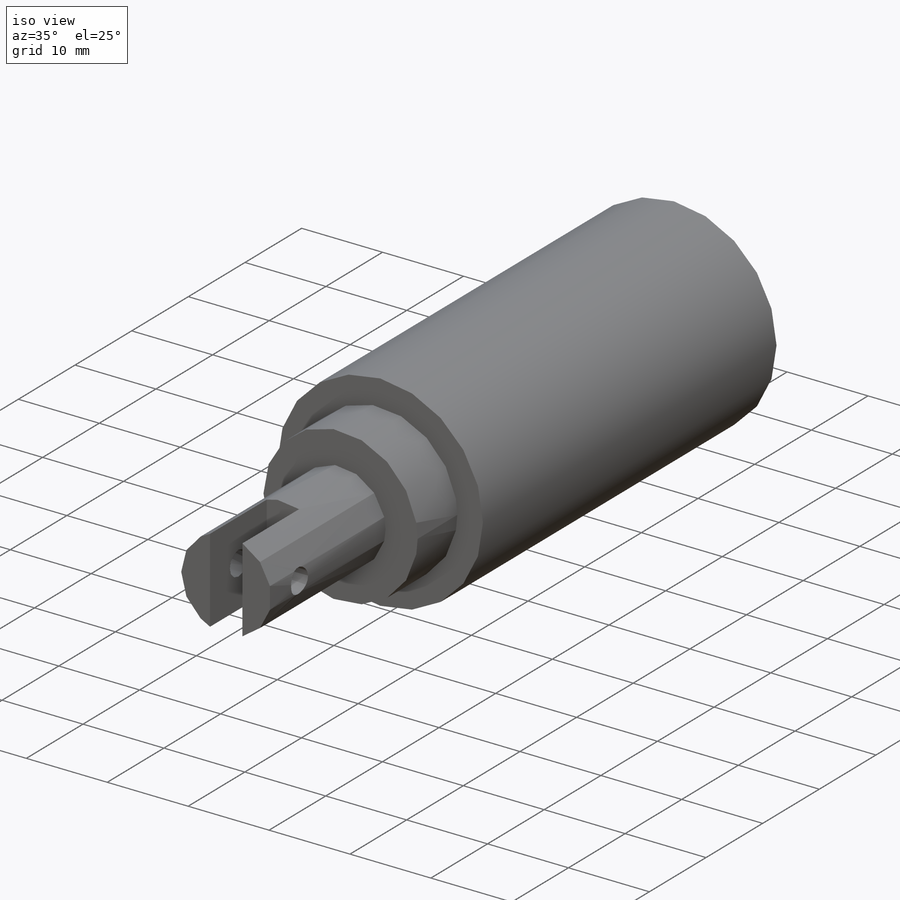
[diagram: iso view]
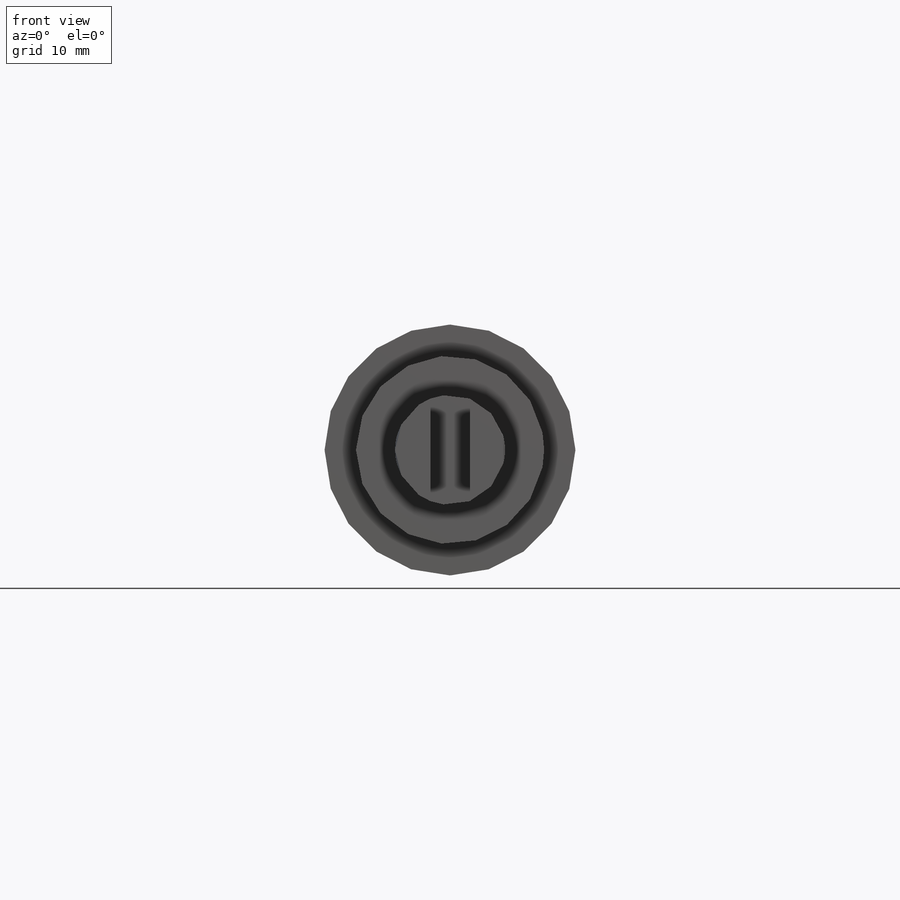
[diagram: front view]
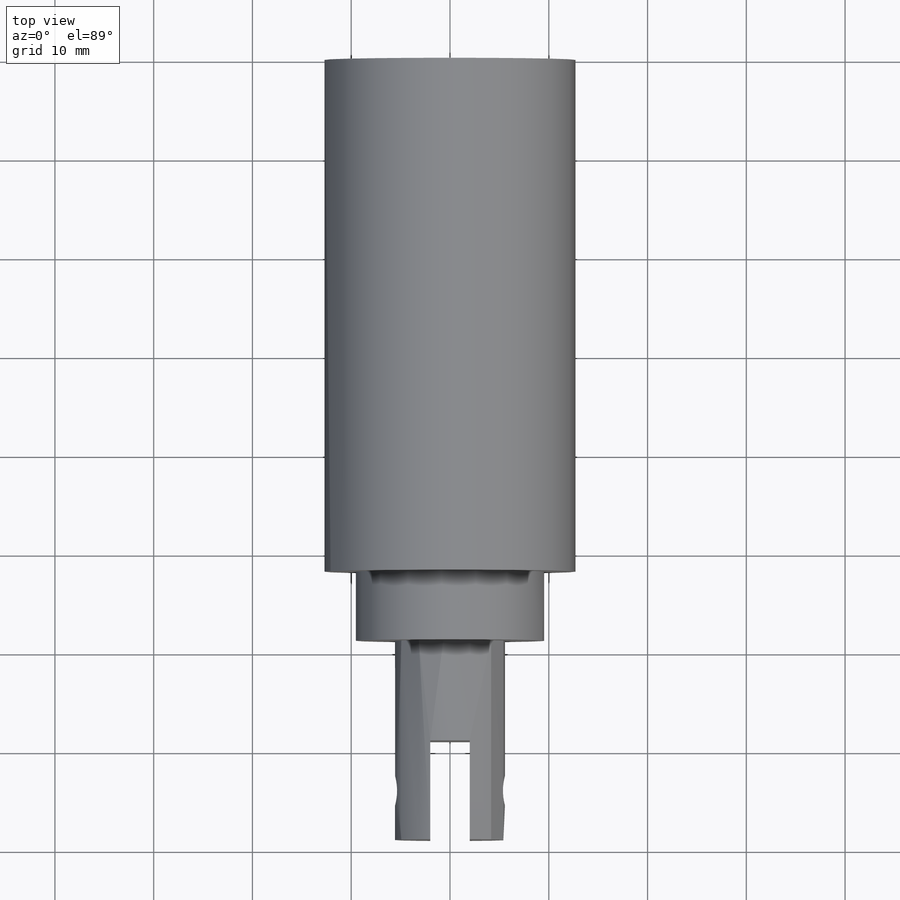
[diagram: top view]
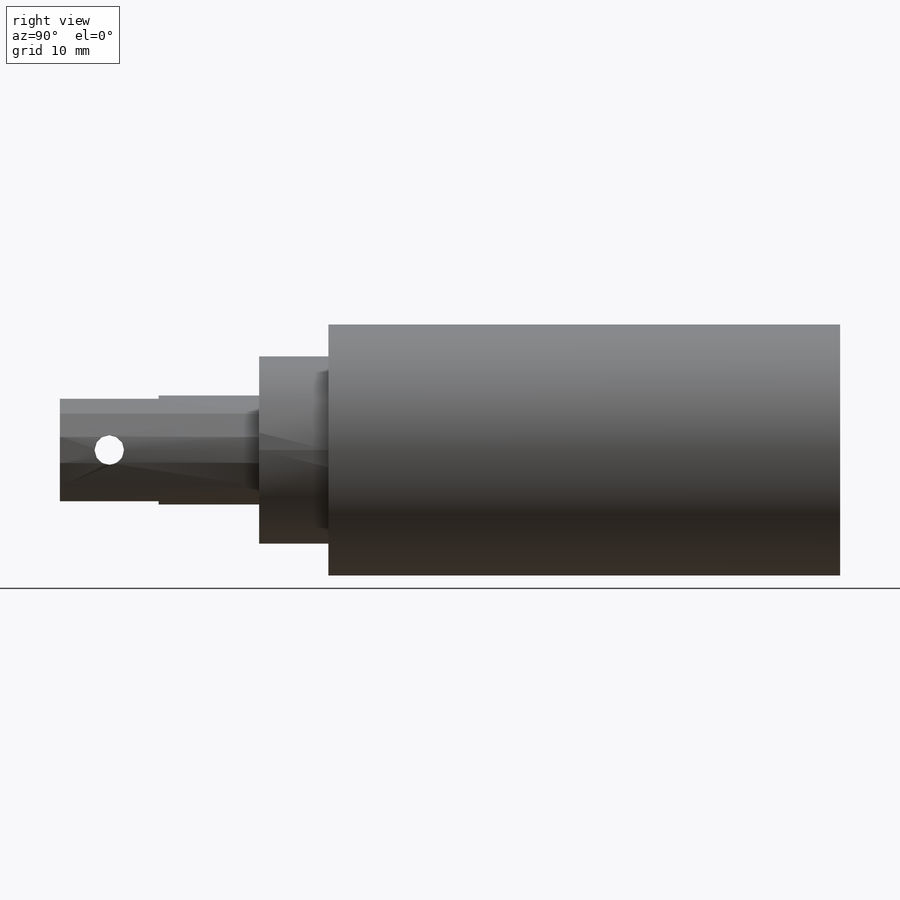
[diagram: right view]
SOLIDWORKS PART (.sldprt)
format: sldprt  version: not decoded by parser v0  size: 217,600 bytes
history: native  units: mm
features: sketch x5, plane x3, extrude x3, cut_extrude x2, material x1 + 1 further entry (+7 scaffold rows collapsed)
feature tree (22):
  scaffold x7  (default folders/planes/origin — collapsed)
  material  "Material <not specified>"
  plane  "정면"
  plane  "윗면"
  plane  "우측면"
  "원점"
  sketch  "Sketch1"  dims[D1=25.4mm]
  extrude  "Extrude1"  Depth=51.816mm
  sketch  "Sketch2"  dims[D1=19.05mm]
  extrude  "Extrude2"  Depth=7mm
  sketch  "Sketch3"  dims[D1=11.1252mm]
  extrude  "Extrude3"  Depth=20.178mm
  sketch  "Sketch4"  dims[c1.D1=11.1252mm c1.D4=11.1252mm c2.D1=2.0mm c2.D2=4.0mm c2.D3=12.0mm c2.D4=6.0mm]
  cut_extrude  "Cut-Extrude1"  Depth=10mm
  sketch  "Sketch5"  dims[c1.D1=3.0mm c1.D4=3.0mm c1.D2=5.19mm c1.D3=5.0mm c2.D4=~5.381237mm]
  cut_extrude  "Cut-Extrude2"  Depth=10mm
decode coverage: 10 of 10 modeling features carry decoded parameters; 1 rows unclassified (native names shown)
note: ~ marks probable driven/reference dimensions
note: suppression state not decoded; provenance and decode notes live in map.json
